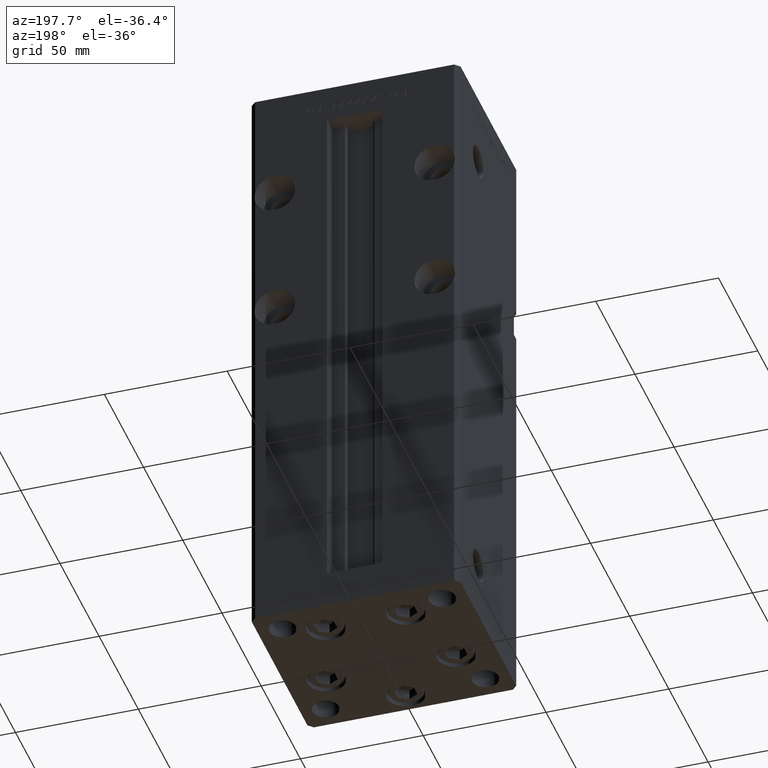
[diagram: clean part render]
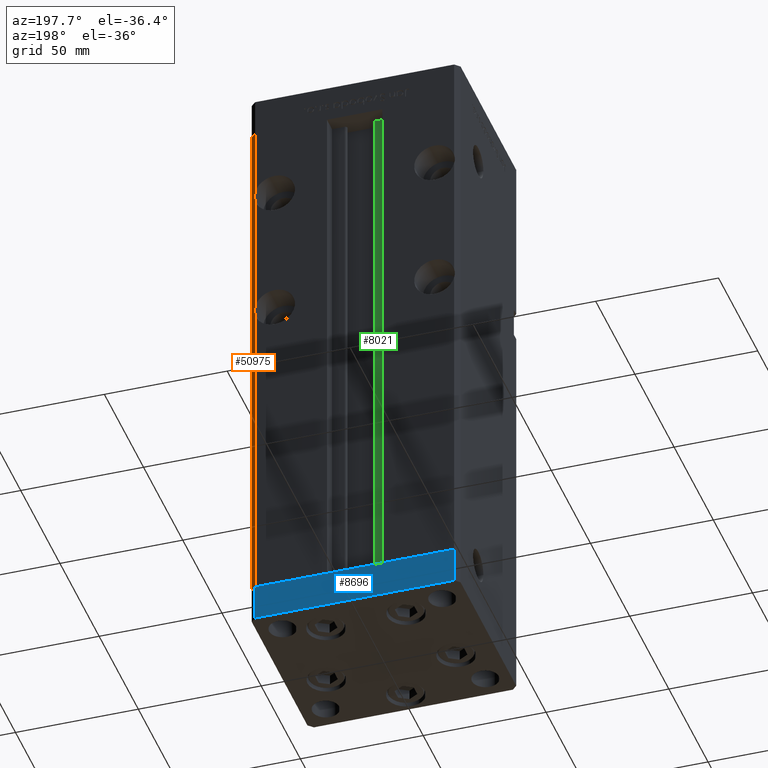
[diagram: same view with three faces highlighted in distinct colors, each labeled with its STEP entity id]
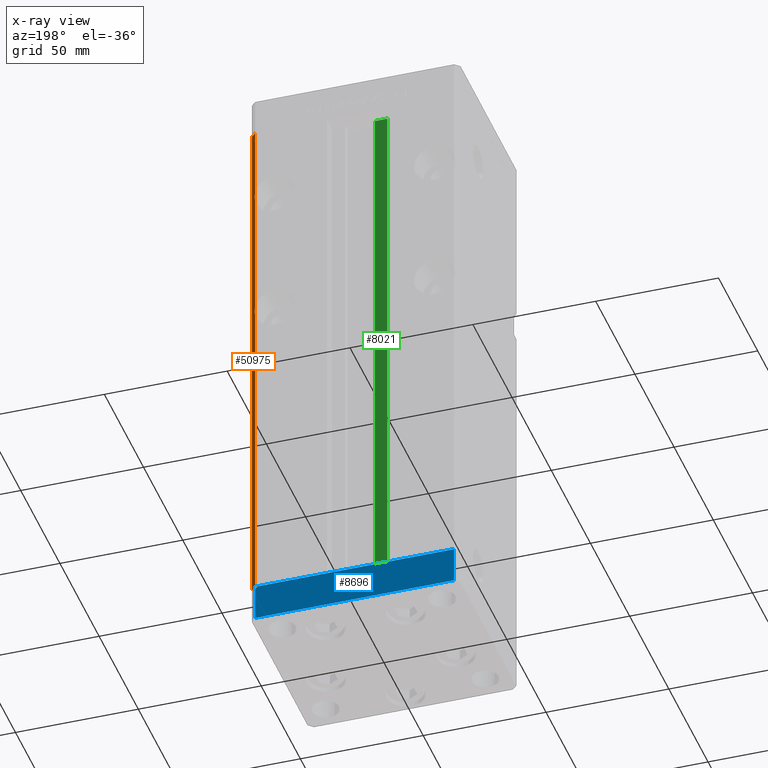
[diagram: x-ray of the same camera — body ghosted, the three highlighted faces saturated]
A machine part, auxiliary view with three faces highlighted in distinct colors.
The next image is the same camera in x-ray (body ghosted, the three faces saturated) — at least one of them is partly hidden behind the body in this view.
Their STEP definitions:

[orange] entity #50975 — the highlighted planar face has unit normal (0.7071, 0.7071, 0).
#916 = VERTEX_POINT ( 'NONE', #35162 ) ;
#1362 =( BOUNDED_CURVE ( )  B_SPLINE_CURVE ( 3, ( #53109, #16580, #28417, #11755 ),
 .UNSPECIFIED., .F., .F. ) 
 B_SPLINE_CURVE_WITH_KNOTS ( ( 4, 4 ),
 ( 2.894783720120218895, 3.388401587059367337 ),
 .UNSPECIFIED. ) 
 CURVE ( )  GEOMETRIC_REPRESENTATION_ITEM ( )  RATIONAL_B_SPLINE_CURVE ( ( 1.000000000000000000, 0.9797979797979794458, 0.9797979797979794458, 1.000000000000000000 ) ) 
 REPRESENTATION_ITEM ( '' )  );
#1568 = CARTESIAN_POINT ( 'NONE',  ( 40.50000000000000711, 37.50000000000000000, 185.9844355629253414 ) ) ;
#2213 = EDGE_CURVE ( 'NONE', #41251, #38756, #50340, .T. ) ;
#2813 = EDGE_CURVE ( 'NONE', #12383, #9344, #24579, .T. ) ;
#4436 = EDGE_CURVE ( 'NONE', #47939, #43910, #1362, .T. ) ;
#4771 = CARTESIAN_POINT ( 'NONE',  ( 40.50000000000000711, 37.50000000000000000, 135.0155644370746018 ) ) ;
#5257 = ORIENTED_EDGE ( 'NONE', *, *, #2813, .T. ) ;
#6359 = LINE ( 'NONE', #39152, #32184 ) ;
#6579 = CARTESIAN_POINT ( 'NONE',  ( 40.50000000000000711, 37.50000000000000000, 0.000000000000000000 ) ) ;
#6811 = LINE ( 'NONE', #7591, #43605 ) ;
#6822 = DIRECTION ( 'NONE',  ( -0.7071067811865500152, 0.7071067811865450192, 0.000000000000000000 ) ) ;
#7591 = CARTESIAN_POINT ( 'NONE',  ( 42.50000000000001421, 35.50000000000000711, 218.5000000000000000 ) ) ;
#8761 = VECTOR ( 'NONE', #41479, 1000.000000000000114 ) ;
#9344 = VERTEX_POINT ( 'NONE', #48478 ) ;
#11392 = LINE ( 'NONE', #6579, #26986 ) ;
#11755 = CARTESIAN_POINT ( 'NONE',  ( 40.50000000000000711, 37.50000000000000000, 185.9844355629253414 ) ) ;
#12383 = VERTEX_POINT ( 'NONE', #38727 ) ;
#12726 = CARTESIAN_POINT ( 'NONE',  ( 40.50000000000000711, 37.50000000000000000, 218.5000000000000000 ) ) ;
#13615 = EDGE_CURVE ( 'NONE', #43910, #50960, #46924, .T. ) ;
#14098 =( BOUNDED_CURVE ( )  B_SPLINE_CURVE ( 3, ( #4771, #28978, #37813, #17123 ),
 .UNSPECIFIED., .F., .F. ) 
 B_SPLINE_CURVE_WITH_KNOTS ( ( 4, 4 ),
 ( 2.894783720120225556, 3.388401587059360676 ),
 .UNSPECIFIED. ) 
 CURVE ( )  GEOMETRIC_REPRESENTATION_ITEM ( )  RATIONAL_B_SPLINE_CURVE ( ( 1.000000000000000000, 0.9797979797979806671, 0.9797979797979806671, 1.000000000000000000 ) ) 
 REPRESENTATION_ITEM ( '' )  );
#15576 = ORIENTED_EDGE ( 'NONE', *, *, #13615, .F. ) ;
#16109 = EDGE_CURVE ( 'NONE', #38756, #916, #11392, .T. ) ;
#16580 = CARTESIAN_POINT ( 'NONE',  ( 40.83505154639176027, 37.16494845360823973, 188.6857074889016701 ) ) ;
#17123 = CARTESIAN_POINT ( 'NONE',  ( 40.50000000000000711, 37.50000000000000000, 130.9844355629253982 ) ) ;
#18286 = ORIENTED_EDGE ( 'NONE', *, *, #4436, .F. ) ;
#18448 = AXIS2_PLACEMENT_3D ( 'NONE', #44149, #48441, #6822 ) ;
#18729 = DIRECTION ( 'NONE',  ( -0.000000000000000000, -0.000000000000000000, -1.000000000000000000 ) ) ;
#21760 = VECTOR ( 'NONE', #26516, 1000.000000000000000 ) ;
#23337 = CARTESIAN_POINT ( 'NONE',  ( 40.50000000000000711, 37.50000000000000000, 0.000000000000000000 ) ) ;
#23485 = FACE_OUTER_BOUND ( 'NONE', #50240, .T. ) ;
#24579 = LINE ( 'NONE', #12726, #8761 ) ;
#26175 = CARTESIAN_POINT ( 'NONE',  ( 40.50000000000000711, 37.50000000000000000, 218.5000000000000000 ) ) ;
#26516 = DIRECTION ( 'NONE',  ( -0.000000000000000000, -0.000000000000000000, -1.000000000000000000 ) ) ;
#26986 = VECTOR ( 'NONE', #44168, 1000.000000000000114 ) ;
#27110 = ORIENTED_EDGE ( 'NONE', *, *, #16109, .F. ) ;
#28417 = CARTESIAN_POINT ( 'NONE',  ( 40.83505154639176027, 37.16494845360823973, 187.3142925110983299 ) ) ;
#28978 = CARTESIAN_POINT ( 'NONE',  ( 40.83505154639174606, 37.16494845360825394, 133.6857074889016701 ) ) ;
#32184 = VECTOR ( 'NONE', #18729, 1000.000000000000000 ) ;
#34854 = CARTESIAN_POINT ( 'NONE',  ( 40.50000000000000711, 37.50000000000000000, 218.5000000000000000 ) ) ;
#35162 = CARTESIAN_POINT ( 'NONE',  ( 42.50000000000001421, 35.50000000000000711, 0.000000000000000000 ) ) ;
#35309 = CARTESIAN_POINT ( 'NONE',  ( 40.50000000000000711, 37.50000000000000000, 135.0155644370746018 ) ) ;
#36247 = EDGE_CURVE ( 'NONE', #9344, #916, #6811, .T. ) ;
#37813 = CARTESIAN_POINT ( 'NONE',  ( 40.83505154639174606, 37.16494845360825394, 132.3142925110983299 ) ) ;
#38727 = CARTESIAN_POINT ( 'NONE',  ( 40.50000000000000711, 37.50000000000000000, 218.5000000000000000 ) ) ;
#38756 = VERTEX_POINT ( 'NONE', #23337 ) ;
#39152 = CARTESIAN_POINT ( 'NONE',  ( 40.50000000000000711, 37.50000000000000000, 218.5000000000000000 ) ) ;
#41212 = ORIENTED_EDGE ( 'NONE', *, *, #51896, .F. ) ;
#41251 = VERTEX_POINT ( 'NONE', #48758 ) ;
#41479 = DIRECTION ( 'NONE',  ( 0.7071067811865500152, -0.7071067811865451302, 0.000000000000000000 ) ) ;
#42283 = DIRECTION ( 'NONE',  ( -0.000000000000000000, -0.000000000000000000, -1.000000000000000000 ) ) ;
#43605 = VECTOR ( 'NONE', #48430, 1000.000000000000000 ) ;
#43630 = PLANE ( 'NONE',  #18448 ) ;
#43910 = VERTEX_POINT ( 'NONE', #1568 ) ;
#44149 = CARTESIAN_POINT ( 'NONE',  ( 40.50000000000000711, 37.50000000000000000, 218.5000000000000000 ) ) ;
#44168 = DIRECTION ( 'NONE',  ( 0.7071067811865500152, -0.7071067811865451302, 0.000000000000000000 ) ) ;
#44181 = EDGE_CURVE ( 'NONE', #50960, #41251, #14098, .T. ) ;
#45760 = ORIENTED_EDGE ( 'NONE', *, *, #44181, .F. ) ;
#46924 = LINE ( 'NONE', #34854, #21760 ) ;
#47939 = VERTEX_POINT ( 'NONE', #50398 ) ;
#48430 = DIRECTION ( 'NONE',  ( -0.000000000000000000, -0.000000000000000000, -1.000000000000000000 ) ) ;
#48441 = DIRECTION ( 'NONE',  ( 0.7071067811865450192, 0.7071067811865500152, -0.000000000000000000 ) ) ;
#48478 = CARTESIAN_POINT ( 'NONE',  ( 42.50000000000001421, 35.50000000000000711, 218.5000000000000000 ) ) ;
#48758 = CARTESIAN_POINT ( 'NONE',  ( 40.50000000000000711, 37.50000000000000000, 130.9844355629253982 ) ) ;
#49866 = VECTOR ( 'NONE', #42283, 1000.000000000000000 ) ;
#49914 = ORIENTED_EDGE ( 'NONE', *, *, #36247, .T. ) ;
#50240 = EDGE_LOOP ( 'NONE', ( #45760, #15576, #18286, #41212, #5257, #49914, #27110, #51563 ) ) ;
#50340 = LINE ( 'NONE', #26175, #49866 ) ;
#50398 = CARTESIAN_POINT ( 'NONE',  ( 40.50000000000000711, 37.50000000000000000, 190.0155644370746586 ) ) ;
#50960 = VERTEX_POINT ( 'NONE', #35309 ) ;
#50975 = ADVANCED_FACE ( 'NONE', ( #23485 ), #43630, .T. ) ;
#51563 = ORIENTED_EDGE ( 'NONE', *, *, #2213, .F. ) ;
#51896 = EDGE_CURVE ( 'NONE', #12383, #47939, #6359, .T. ) ;
#53109 = CARTESIAN_POINT ( 'NONE',  ( 40.50000000000000711, 37.50000000000000000, 190.0155644370746586 ) ) ;

[blue] entity #8696 — the highlighted planar face has unit normal (-0, 1, 0).
#316 = CARTESIAN_POINT ( 'NONE',  ( -40.50000000000000711, 37.49999999999997868, 0.000000000000000000 ) ) ;
#2124 = CARTESIAN_POINT ( 'NONE',  ( 40.49999999999991473, 37.50000000000000711, -15.00000000000000000 ) ) ;
#2396 = DIRECTION ( 'NONE',  ( 0.000000000000000000, 0.000000000000000000, 1.000000000000000000 ) ) ;
#5289 = CARTESIAN_POINT ( 'NONE',  ( -40.50000000000000711, 37.49999999999997868, -15.00000000000000000 ) ) ;
#7060 = VECTOR ( 'NONE', #7115, 1000.000000000000000 ) ;
#7115 = DIRECTION ( 'NONE',  ( 0.000000000000000000, 0.000000000000000000, 1.000000000000000000 ) ) ;
#8696 = ADVANCED_FACE ( 'NONE', ( #47344 ), #31252, .T. ) ;
#9184 = EDGE_CURVE ( 'NONE', #29802, #44445, #31060, .T. ) ;
#11124 = LINE ( 'NONE', #27516, #42825 ) ;
#11273 = AXIS2_PLACEMENT_3D ( 'NONE', #26145, #18076, #51121 ) ;
#11731 = EDGE_LOOP ( 'NONE', ( #30367, #45847, #13698, #27479 ) ) ;
#12145 = VECTOR ( 'NONE', #2396, 1000.000000000000000 ) ;
#13681 = EDGE_CURVE ( 'NONE', #14640, #44445, #21972, .T. ) ;
#13698 = ORIENTED_EDGE ( 'NONE', *, *, #34079, .T. ) ;
#14640 = VERTEX_POINT ( 'NONE', #44749 ) ;
#18076 = DIRECTION ( 'NONE',  ( -3.426614273534436165E-16, 1.000000000000000000, 0.000000000000000000 ) ) ;
#21972 = LINE ( 'NONE', #38345, #49199 ) ;
#23495 = DIRECTION ( 'NONE',  ( -1.000000000000000000, -3.426614273534436165E-16, 0.000000000000000000 ) ) ;
#25123 = CARTESIAN_POINT ( 'NONE',  ( 40.49999999999991473, 37.50000000000000711, -15.00000000000000000 ) ) ;
#26145 = CARTESIAN_POINT ( 'NONE',  ( 40.49999999999991473, 37.50000000000000711, -15.00000000000000000 ) ) ;
#27479 = ORIENTED_EDGE ( 'NONE', *, *, #9184, .T. ) ;
#27516 = CARTESIAN_POINT ( 'NONE',  ( 40.49999999999991473, 37.50000000000000711, -15.00000000000000000 ) ) ;
#29802 = VERTEX_POINT ( 'NONE', #5289 ) ;
#30367 = ORIENTED_EDGE ( 'NONE', *, *, #13681, .F. ) ;
#31060 = LINE ( 'NONE', #42869, #7060 ) ;
#31165 = LINE ( 'NONE', #2124, #12145 ) ;
#31252 = PLANE ( 'NONE',  #11273 ) ;
#34079 = EDGE_CURVE ( 'NONE', #49975, #29802, #11124, .T. ) ;
#38345 = CARTESIAN_POINT ( 'NONE',  ( 40.49999999999991473, 37.50000000000000711, 0.000000000000000000 ) ) ;
#42550 = EDGE_CURVE ( 'NONE', #49975, #14640, #31165, .T. ) ;
#42825 = VECTOR ( 'NONE', #23495, 1000.000000000000000 ) ;
#42869 = CARTESIAN_POINT ( 'NONE',  ( -40.50000000000000711, 37.49999999999997868, -15.00000000000000000 ) ) ;
#44445 = VERTEX_POINT ( 'NONE', #316 ) ;
#44749 = CARTESIAN_POINT ( 'NONE',  ( 40.49999999999991473, 37.50000000000000711, 0.000000000000000000 ) ) ;
#45847 = ORIENTED_EDGE ( 'NONE', *, *, #42550, .F. ) ;
#47344 = FACE_OUTER_BOUND ( 'NONE', #11731, .T. ) ;
#48236 = DIRECTION ( 'NONE',  ( -1.000000000000000000, -3.426614273534436165E-16, 0.000000000000000000 ) ) ;
#49199 = VECTOR ( 'NONE', #48236, 1000.000000000000000 ) ;
#49975 = VERTEX_POINT ( 'NONE', #25123 ) ;
#51121 = DIRECTION ( 'NONE',  ( -1.000000000000000000, -3.426614273534436165E-16, 0.000000000000000000 ) ) ;

[green] entity #8021 — the highlighted planar face has unit normal (0, -1, 0).
#199 = DIRECTION ( 'NONE',  ( 0.000000000000000000, -1.000000000000000000, -0.000000000000000000 ) ) ;
#5884 = CARTESIAN_POINT ( 'NONE',  ( -11.24999999999999822, 31.00000000000000000, 0.000000000000000000 ) ) ;
#8021 = ADVANCED_FACE ( 'NONE', ( #48596 ), #11796, .F. ) ;
#8145 = EDGE_CURVE ( 'NONE', #35808, #42661, #43721, .T. ) ;
#10682 = CARTESIAN_POINT ( 'NONE',  ( -6.183333333333997928, 31.00000000000000000, 0.000000000000000000 ) ) ;
#10983 = LINE ( 'NONE', #5884, #46501 ) ;
#11796 = PLANE ( 'NONE',  #26756 ) ;
#12065 = CARTESIAN_POINT ( 'NONE',  ( -6.183333333333997928, 31.00000000000000000, 218.5000000000000000 ) ) ;
#17672 = VERTEX_POINT ( 'NONE', #12065 ) ;
#22465 = VECTOR ( 'NONE', #22795, 1000.000000000000000 ) ;
#22795 = DIRECTION ( 'NONE',  ( 1.000000000000000000, -0.000000000000000000, -0.000000000000000000 ) ) ;
#23455 = ORIENTED_EDGE ( 'NONE', *, *, #36250, .F. ) ;
#23738 = CARTESIAN_POINT ( 'NONE',  ( -6.183333333333997928, 31.00000000000000000, 0.000000000000000000 ) ) ;
#23907 = LINE ( 'NONE', #24444, #50874 ) ;
#24444 = CARTESIAN_POINT ( 'NONE',  ( 0.000000000000000000, 31.00000000000000000, 218.5000000000000000 ) ) ;
#26756 = AXIS2_PLACEMENT_3D ( 'NONE', #37055, #199, #49391 ) ;
#28029 = LINE ( 'NONE', #23738, #31607 ) ;
#28176 = CARTESIAN_POINT ( 'NONE',  ( -6.183333333333997928, 31.00000000000000000, 0.000000000000000000 ) ) ;
#31566 = EDGE_LOOP ( 'NONE', ( #23455, #40873, #39303, #33534 ) ) ;
#31607 = VECTOR ( 'NONE', #32064, 1000.000000000000000 ) ;
#32064 = DIRECTION ( 'NONE',  ( -0.000000000000000000, -0.000000000000000000, 1.000000000000000000 ) ) ;
#33534 = ORIENTED_EDGE ( 'NONE', *, *, #46725, .F. ) ;
#35808 = VERTEX_POINT ( 'NONE', #39137 ) ;
#36250 = EDGE_CURVE ( 'NONE', #42661, #17672, #28029, .T. ) ;
#37055 = CARTESIAN_POINT ( 'NONE',  ( -6.183333333333997928, 31.00000000000000000, 0.000000000000000000 ) ) ;
#38543 = CARTESIAN_POINT ( 'NONE',  ( -11.24999999999999822, 31.00000000000000000, 218.5000000000000000 ) ) ;
#38945 = DIRECTION ( 'NONE',  ( -0.000000000000000000, -0.000000000000000000, 1.000000000000000000 ) ) ;
#39137 = CARTESIAN_POINT ( 'NONE',  ( -11.24999999999999822, 31.00000000000000000, 0.000000000000000000 ) ) ;
#39303 = ORIENTED_EDGE ( 'NONE', *, *, #43944, .T. ) ;
#40549 = DIRECTION ( 'NONE',  ( -1.000000000000000000, 0.000000000000000000, 0.000000000000000000 ) ) ;
#40873 = ORIENTED_EDGE ( 'NONE', *, *, #8145, .F. ) ;
#41924 = VERTEX_POINT ( 'NONE', #38543 ) ;
#42661 = VERTEX_POINT ( 'NONE', #28176 ) ;
#43721 = LINE ( 'NONE', #10682, #22465 ) ;
#43944 = EDGE_CURVE ( 'NONE', #35808, #41924, #10983, .T. ) ;
#46501 = VECTOR ( 'NONE', #38945, 1000.000000000000000 ) ;
#46725 = EDGE_CURVE ( 'NONE', #17672, #41924, #23907, .T. ) ;
#48596 = FACE_OUTER_BOUND ( 'NONE', #31566, .T. ) ;
#49391 = DIRECTION ( 'NONE',  ( 0.000000000000000000, 0.000000000000000000, -1.000000000000000000 ) ) ;
#50874 = VECTOR ( 'NONE', #40549, 1000.000000000000000 ) ;